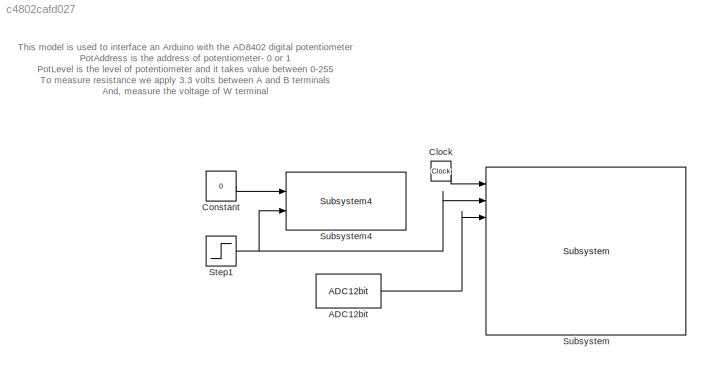
MODEL slx_c4802cafd027
KIND model
CONFIG AbsTol = auto
CONFIG EnableMultiTasking = on
CONFIG FixedStep = Tsa
CONFIG MaxStep = auto
CONFIG MinStep = auto
CONFIG RelTol = 1e-3
CONFIG SampleTimeConstraint = Unconstrained
CONFIG Solver = FixedStepAuto
CONFIG SolverName = FixedStepAuto
CONFIG StartTime = 0.0
CONFIG StopTime = inf
BLOCK [Reference] ADC12bit  REF=EEE481Arduino/ADC12bit
  Ports = [0, 1]
  SourceBlock = EEE481Arduino/ADC12bit
BLOCK [Clock] Clock
BLOCK [Constant] Constant
  Value = 0
BLOCK [Step] Step1
  After = 250
  Before = 10
  SampleTime = Tsa
  Time = 50
BLOCK [Reference] Subsystem  REF=EEE481Arduino/Subsystem
  Ports = [9, 3]
  SourceBlock = EEE481Arduino/Subsystem
BLOCK [Reference] Subsystem4  REF=EEE481Arduino/Subsystem4
  Ports = [2]
  SourceBlock = EEE481Arduino/Subsystem4
ANNOTATION (root): This model is used to interface an Arduino with the AD8402 digital potentiometer PotAddress is the address of potentiometer- 0 or 1 PotLevel is the level of potentiometer and it takes value between 0-255 To measure resistance we apply 3.3 volts between A and B terminals And, measure the voltage of W terminal
LINE ADC12bit:1 -> Subsystem:3
LINE Clock:1 -> Subsystem:1
LINE Constant:1 -> Subsystem4:1
NET Step1:1 -> Subsystem4:2, Subsystem:2
note: NET lines group one-source signal fan-out (src -> all destinations, sorted); 1:1 wires keep LINE
